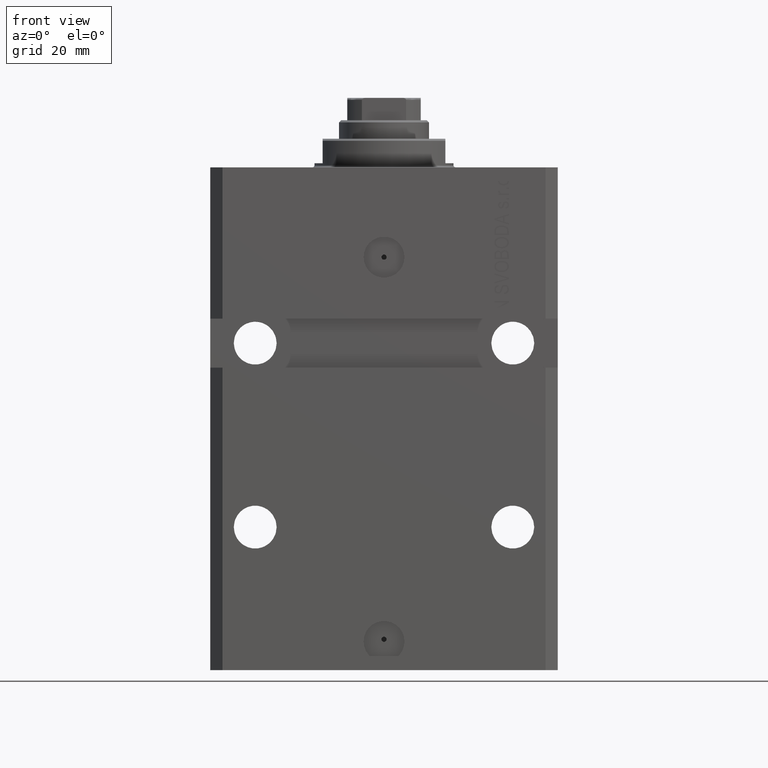
[diagram: clean part render]
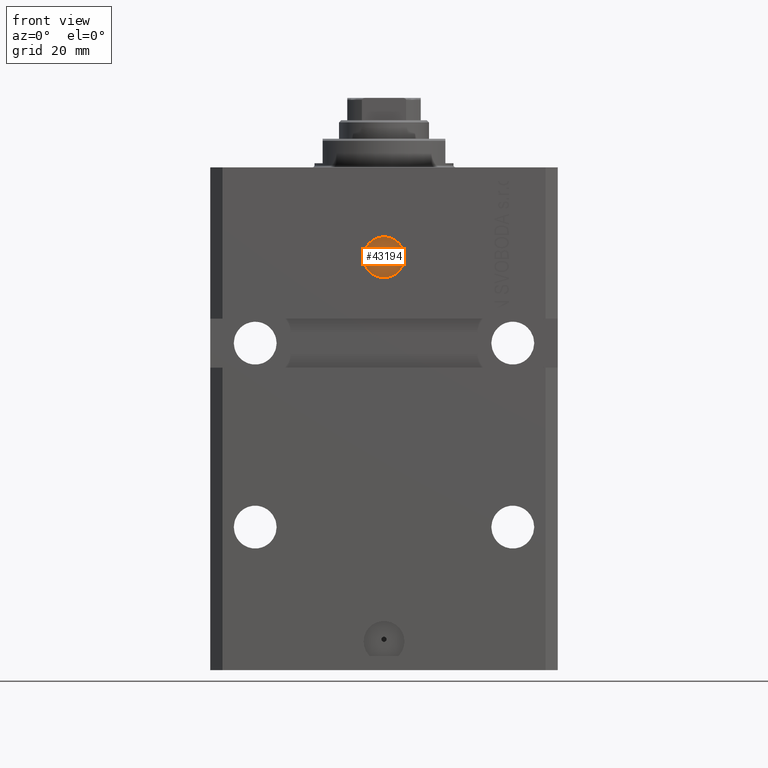
[diagram: same view with one face highlighted and labeled with its STEP entity id]
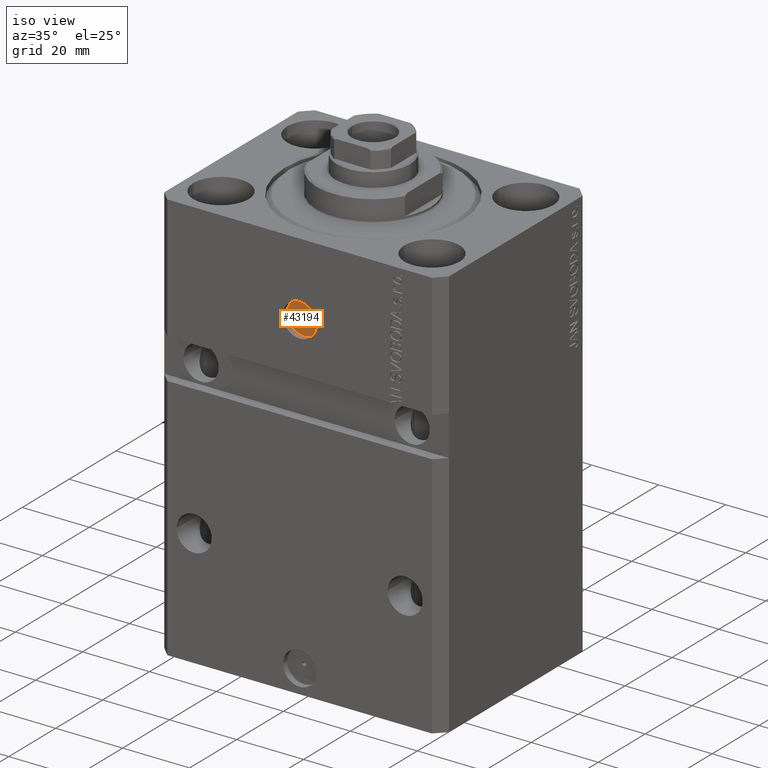
[diagram: same view with one face highlighted and labeled with its STEP entity id]
A machine part, front view. The second image highlights one B-rep face of the part: STEP entity #43194.
A second angle (iso view) of the same face is appended — the face is thin or edge-on in the first view.
In plain terms, the highlighted planar face has unit normal (0, -1, 0).
Its self-contained STEP definition (entity closure, byte-faithful):
#823 = CIRCLE ( 'NONE', #4705, 5.000000000000002665 ) ;
#919 = CIRCLE ( 'NONE', #41298, 0.6250000000000002220 ) ;
#1035 = DIRECTION ( 'NONE',  ( 1.000000000000000000, 0.000000000000000000, 0.000000000000000000 ) ) ;
#1205 = VERTEX_POINT ( 'NONE', #21227 ) ;
#1999 = VERTEX_POINT ( 'NONE', #3529 ) ;
#3262 = FACE_OUTER_BOUND ( 'NONE', #33469, .T. ) ;
#3529 = CARTESIAN_POINT ( 'NONE',  ( -5.000000000000002665, -29.60000000000000142, -22.00000000000000000 ) ) ;
#4705 = AXIS2_PLACEMENT_3D ( 'NONE', #23072, #44481, #30388 ) ;
#6178 = VERTEX_POINT ( 'NONE', #11428 ) ;
#10648 = CARTESIAN_POINT ( 'NONE',  ( 3.481207789079292456E-15, -29.60000000000000142, -22.00000000000000000 ) ) ;
#11428 = CARTESIAN_POINT ( 'NONE',  ( 0.6250000000000036637, -29.60000000000000142, -22.00000000000000000 ) ) ;
#12052 = EDGE_CURVE ( 'NONE', #14088, #1999, #32469, .T. ) ;
#12501 = AXIS2_PLACEMENT_3D ( 'NONE', #10648, #47392, #47148 ) ;
#13260 = AXIS2_PLACEMENT_3D ( 'NONE', #14947, #25644, #14703 ) ;
#14088 = VERTEX_POINT ( 'NONE', #34249 ) ;
#14703 = DIRECTION ( 'NONE',  ( 1.000000000000000000, 1.176083712526788232E-16, 0.000000000000000000 ) ) ;
#14947 = CARTESIAN_POINT ( 'NONE',  ( -2.234559053800897838E-16, -29.60000000000000142, -22.00000000000000000 ) ) ;
#17624 = EDGE_CURVE ( 'NONE', #1999, #14088, #823, .T. ) ;
#19511 = CIRCLE ( 'NONE', #12501, 0.6250000000000002220 ) ;
#19801 = EDGE_CURVE ( 'NONE', #6178, #1205, #919, .T. ) ;
#21227 = CARTESIAN_POINT ( 'NONE',  ( -0.6249999999999967804, -29.60000000000000142, -22.00000000000000000 ) ) ;
#21476 = ORIENTED_EDGE ( 'NONE', *, *, #17624, .T. ) ;
#23072 = CARTESIAN_POINT ( 'NONE',  ( -2.234559053800897838E-16, -29.60000000000000142, -22.00000000000000000 ) ) ;
#24545 = EDGE_LOOP ( 'NONE', ( #39382, #43195 ) ) ;
#25644 = DIRECTION ( 'NONE',  ( 1.176083712526788232E-16, -1.000000000000000000, 0.000000000000000000 ) ) ;
#26228 = ORIENTED_EDGE ( 'NONE', *, *, #12052, .T. ) ;
#27278 = DIRECTION ( 'NONE',  ( 1.000000000000000000, 0.000000000000000000, 0.000000000000000000 ) ) ;
#30388 = DIRECTION ( 'NONE',  ( 1.000000000000000000, 0.000000000000000000, 0.000000000000000000 ) ) ;
#30695 = CARTESIAN_POINT ( 'NONE',  ( 3.481207789079292456E-15, -29.60000000000000142, -22.00000000000000000 ) ) ;
#32469 = CIRCLE ( 'NONE', #43337, 5.000000000000002665 ) ;
#33469 = EDGE_LOOP ( 'NONE', ( #26228, #21476 ) ) ;
#34249 = CARTESIAN_POINT ( 'NONE',  ( 5.000000000000002665, -29.60000000000000142, -22.00000000000000000 ) ) ;
#34587 = DIRECTION ( 'NONE',  ( 1.176083712526788232E-16, -1.000000000000000000, 0.000000000000000000 ) ) ;
#39382 = ORIENTED_EDGE ( 'NONE', *, *, #19801, .F. ) ;
#41298 = AXIS2_PLACEMENT_3D ( 'NONE', #30695, #45528, #27278 ) ;
#42129 = CARTESIAN_POINT ( 'NONE',  ( -2.234559053800897838E-16, -29.60000000000000142, -22.00000000000000000 ) ) ;
#43194 = ADVANCED_FACE ( 'NONE', ( #48017, #3262 ), #47538, .T. ) ;
#43195 = ORIENTED_EDGE ( 'NONE', *, *, #47600, .F. ) ;
#43337 = AXIS2_PLACEMENT_3D ( 'NONE', #42129, #34587, #1035 ) ;
#44481 = DIRECTION ( 'NONE',  ( 1.176083712526788232E-16, -1.000000000000000000, 0.000000000000000000 ) ) ;
#45528 = DIRECTION ( 'NONE',  ( 1.176083712526788232E-16, -1.000000000000000000, 0.000000000000000000 ) ) ;
#47148 = DIRECTION ( 'NONE',  ( 1.000000000000000000, 0.000000000000000000, 0.000000000000000000 ) ) ;
#47392 = DIRECTION ( 'NONE',  ( 1.176083712526788232E-16, -1.000000000000000000, 0.000000000000000000 ) ) ;
#47538 = PLANE ( 'NONE',  #13260 ) ;
#47600 = EDGE_CURVE ( 'NONE', #1205, #6178, #19511, .T. ) ;
#48017 = FACE_BOUND ( 'NONE', #24545, .T. ) ;